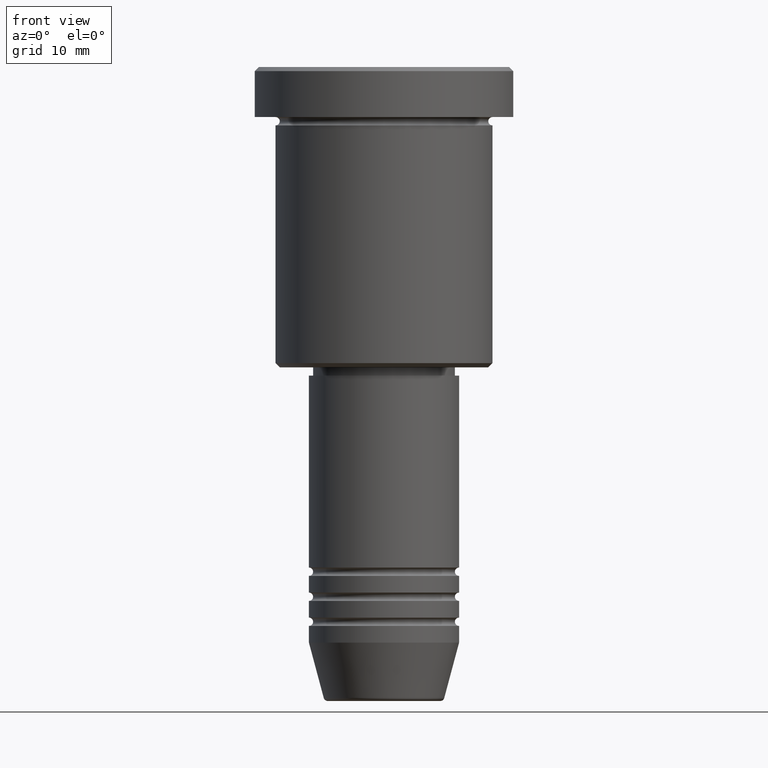
[diagram: clean part render]
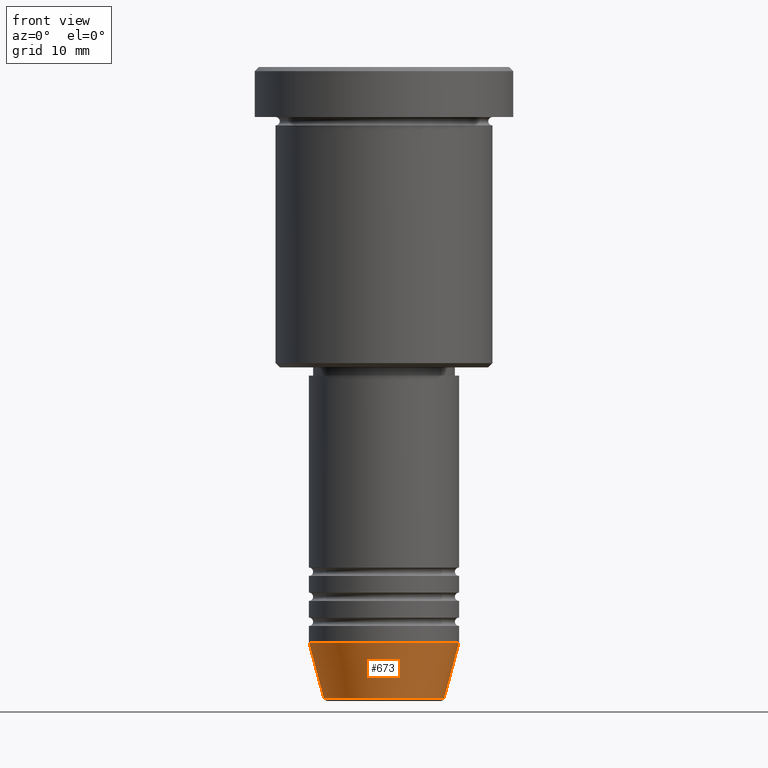
[diagram: same view with one face highlighted and labeled with its STEP entity id]
A machine part, front view. The second image highlights one B-rep face of the part: STEP entity #673.
In plain terms, the highlighted conical surface has half-angle 15 deg.
Its self-contained STEP definition (entity closure, byte-faithful):
#13 = CONICAL_SURFACE ( 'NONE', #112, 9.000000000000000000, 0.2617993877991500740 ) ;
#43 = VERTEX_POINT ( 'NONE', #833 ) ;
#53 = AXIS2_PLACEMENT_3D ( 'NONE', #764, #580, #574 ) ;
#89 = CARTESIAN_POINT ( 'NONE',  ( 9.000000000000000000, 0.000000000000000000, -69.00000000000000000 ) ) ;
#112 = AXIS2_PLACEMENT_3D ( 'NONE', #622, #620, #1152 ) ;
#151 = DIRECTION ( 'NONE',  ( -0.2588190451025213501, 3.169619151431772337E-17, 0.9659258262890680902 ) ) ;
#162 = FACE_OUTER_BOUND ( 'NONE', #789, .T. ) ;
#168 = CARTESIAN_POINT ( 'NONE',  ( -9.000000000000000000, 1.102182119232617714E-15, -69.00000000000000000 ) ) ;
#406 = VECTOR ( 'NONE', #151, 1000.000000000000000 ) ;
#425 = ORIENTED_EDGE ( 'NONE', *, *, #1054, .T. ) ;
#510 = EDGE_CURVE ( 'NONE', #798, #853, #905, .T. ) ;
#539 = AXIS2_PLACEMENT_3D ( 'NONE', #591, #947, #1052 ) ;
#574 = DIRECTION ( 'NONE',  ( 1.000000000000000000, 0.000000000000000000, 0.000000000000000000 ) ) ;
#580 = DIRECTION ( 'NONE',  ( -0.000000000000000000, -0.000000000000000000, 1.000000000000000000 ) ) ;
#591 = CARTESIAN_POINT ( 'NONE',  ( 0.000000000000000000, 0.000000000000000000, -75.62940952255127058 ) ) ;
#620 = DIRECTION ( 'NONE',  ( -0.000000000000000000, -0.000000000000000000, 1.000000000000000000 ) ) ;
#622 = CARTESIAN_POINT ( 'NONE',  ( 0.000000000000000000, 0.000000000000000000, -69.00000000000000000 ) ) ;
#643 = EDGE_CURVE ( 'NONE', #43, #853, #646, .T. ) ;
#646 = LINE ( 'NONE', #89, #863 ) ;
#673 = ADVANCED_FACE ( 'NONE', ( #162 ), #13, .T. ) ;
#682 = ORIENTED_EDGE ( 'NONE', *, *, #1089, .F. ) ;
#698 = VERTEX_POINT ( 'NONE', #977 ) ;
#749 = DIRECTION ( 'NONE',  ( 0.2588190451025213501, 0.000000000000000000, 0.9659258262890680902 ) ) ;
#764 = CARTESIAN_POINT ( 'NONE',  ( 0.000000000000000000, 0.000000000000000000, -69.00000000000000000 ) ) ;
#789 = EDGE_LOOP ( 'NONE', ( #682, #425, #889, #1017 ) ) ;
#798 = VERTEX_POINT ( 'NONE', #168 ) ;
#833 = CARTESIAN_POINT ( 'NONE',  ( 7.223655072137188604, 0.000000000000000000, -75.62940952255127058 ) ) ;
#853 = VERTEX_POINT ( 'NONE', #898 ) ;
#863 = VECTOR ( 'NONE', #749, 1000.000000000000000 ) ;
#889 = ORIENTED_EDGE ( 'NONE', *, *, #643, .T. ) ;
#898 = CARTESIAN_POINT ( 'NONE',  ( 9.000000000000000000, 0.000000000000000000, -69.00000000000000000 ) ) ;
#905 = CIRCLE ( 'NONE', #53, 9.000000000000000000 ) ;
#947 = DIRECTION ( 'NONE',  ( -0.000000000000000000, -0.000000000000000000, 1.000000000000000000 ) ) ;
#962 = LINE ( 'NONE', #1126, #406 ) ;
#977 = CARTESIAN_POINT ( 'NONE',  ( -7.223655072137189492, 9.934123627281765110E-16, -75.62940952255127058 ) ) ;
#1017 = ORIENTED_EDGE ( 'NONE', *, *, #510, .F. ) ;
#1052 = DIRECTION ( 'NONE',  ( 1.000000000000000000, 0.000000000000000000, 0.000000000000000000 ) ) ;
#1054 = EDGE_CURVE ( 'NONE', #698, #43, #1117, .T. ) ;
#1089 = EDGE_CURVE ( 'NONE', #698, #798, #962, .T. ) ;
#1117 = CIRCLE ( 'NONE', #539, 7.223655072137188604 ) ;
#1126 = CARTESIAN_POINT ( 'NONE',  ( -9.000000000000000000, 1.102182119232617714E-15, -69.00000000000000000 ) ) ;
#1152 = DIRECTION ( 'NONE',  ( 1.000000000000000000, 0.000000000000000000, 0.000000000000000000 ) ) ;